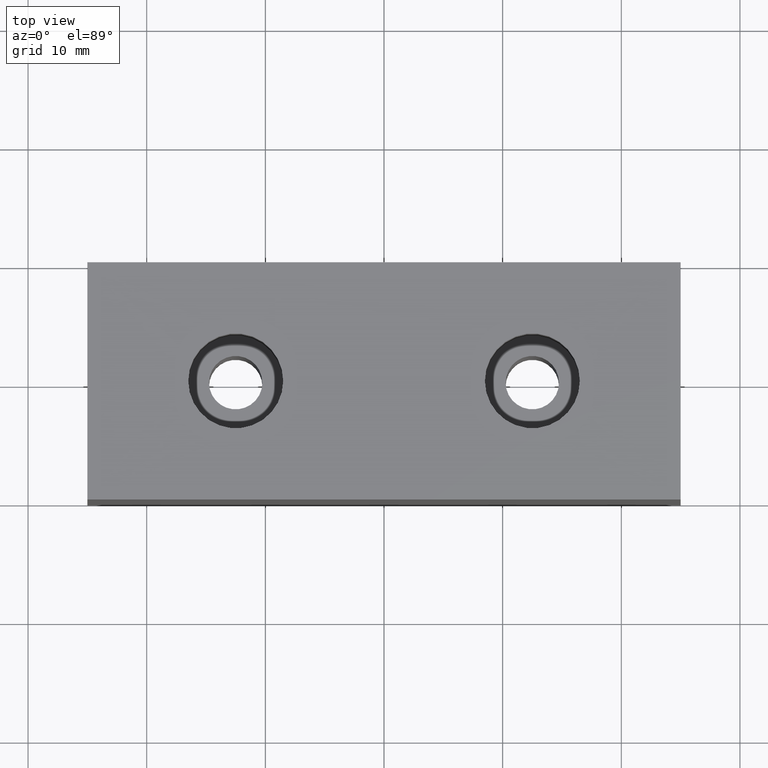
[diagram: clean part render]
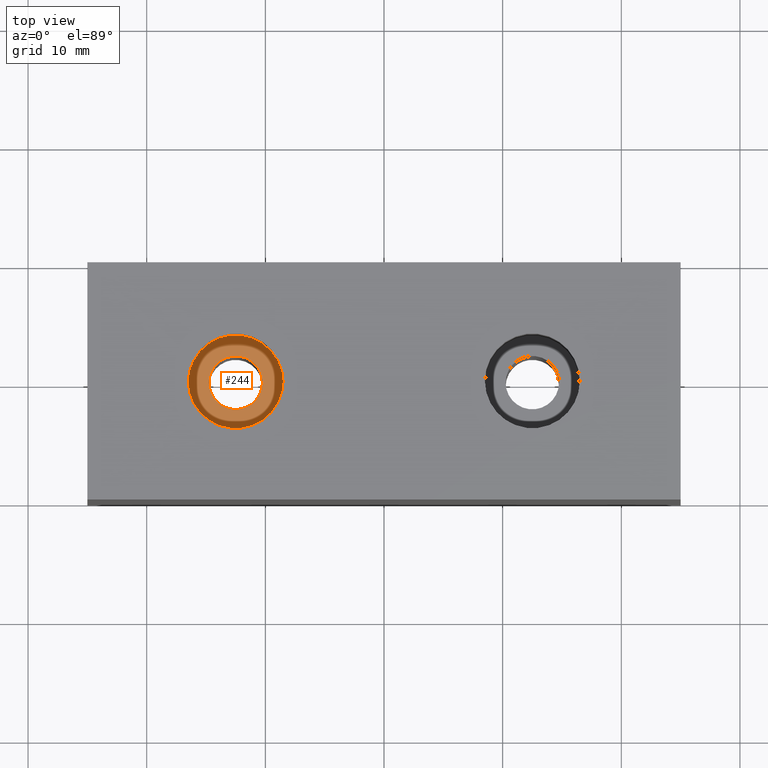
[diagram: same view with one face highlighted and labeled with its STEP entity id]
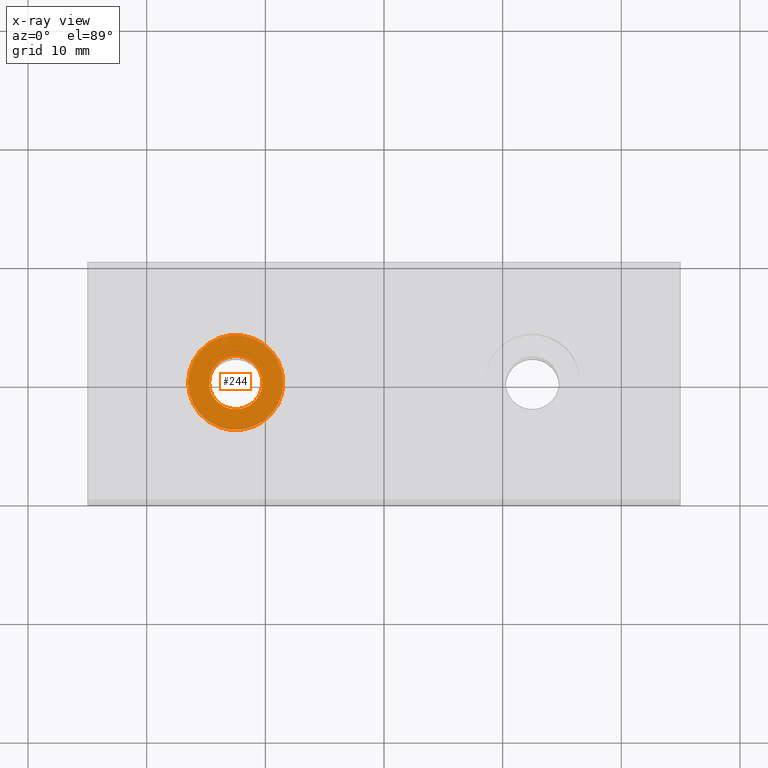
[diagram: x-ray of the same camera — body ghosted, the highlighted face saturated]
A machine part, top view. The second image highlights one B-rep face of the part: STEP entity #244.
The next image is the same camera in x-ray: the body ghosted, the highlighted face saturated — about 3% of this face is hidden behind the body in this view.
In plain terms, the highlighted planar face has unit normal (0, 0, 1).
Its self-contained STEP definition (entity closure, byte-faithful):
#18=FACE_BOUND('',#60,.T.);
#26=PLANE('',#294);
#40=FACE_OUTER_BOUND('',#59,.T.);
#59=EDGE_LOOP('',(#193));
#60=EDGE_LOOP('',(#194));
#119=CIRCLE('',#293,4.);
#120=CIRCLE('',#295,2.25);
#131=VERTEX_POINT('',#411);
#132=VERTEX_POINT('',#415);
#155=EDGE_CURVE('',#131,#131,#119,.T.);
#156=EDGE_CURVE('',#132,#132,#120,.T.);
#193=ORIENTED_EDGE('',*,*,#155,.T.);
#194=ORIENTED_EDGE('',*,*,#156,.F.);
#244=ADVANCED_FACE('',(#40,#18),#26,.T.);
#293=AXIS2_PLACEMENT_3D('',#413,#344,#345);
#294=AXIS2_PLACEMENT_3D('',#414,#346,#347);
#295=AXIS2_PLACEMENT_3D('',#416,#348,#349);
#344=DIRECTION('center_axis',(0.,0.,1.));
#345=DIRECTION('ref_axis',(1.,0.,0.));
#346=DIRECTION('center_axis',(0.,0.,1.));
#347=DIRECTION('ref_axis',(1.,0.,0.));
#348=DIRECTION('center_axis',(0.,0.,1.));
#349=DIRECTION('ref_axis',(1.,0.,0.));
#411=CARTESIAN_POINT('',(-16.5,-2.07241476797078E-15,21.5));
#413=CARTESIAN_POINT('Origin',(-12.5,-1.58255604831184E-15,21.5));
#414=CARTESIAN_POINT('Origin',(-12.5,-1.58255604831184E-15,21.5));
#415=CARTESIAN_POINT('',(-14.75,-1.85810157811999E-15,21.5));
#416=CARTESIAN_POINT('Origin',(-12.5,-1.58255604831184E-15,21.5));